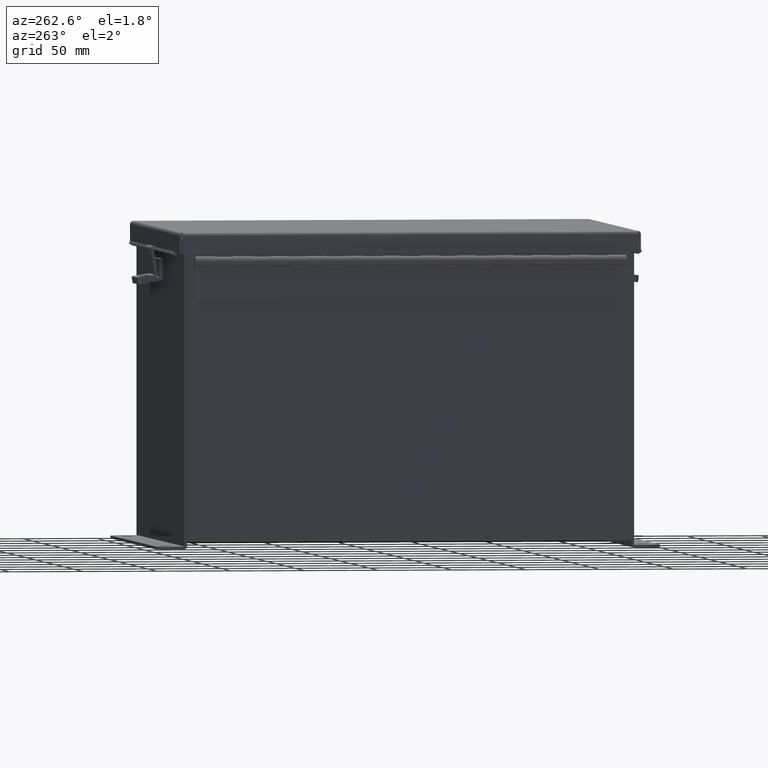
[diagram: clean part render]
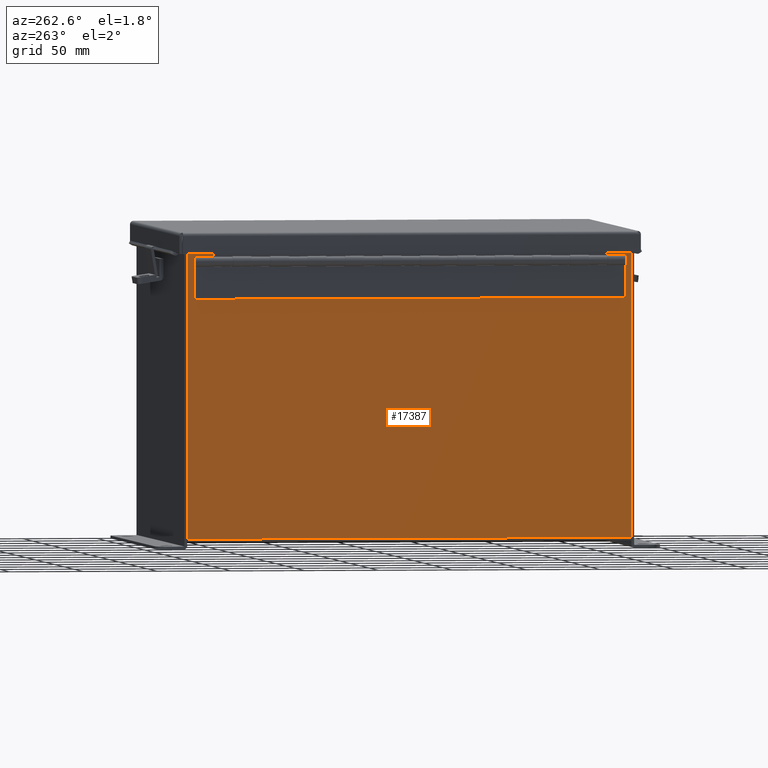
[diagram: same view with one face highlighted and labeled with its STEP entity id]
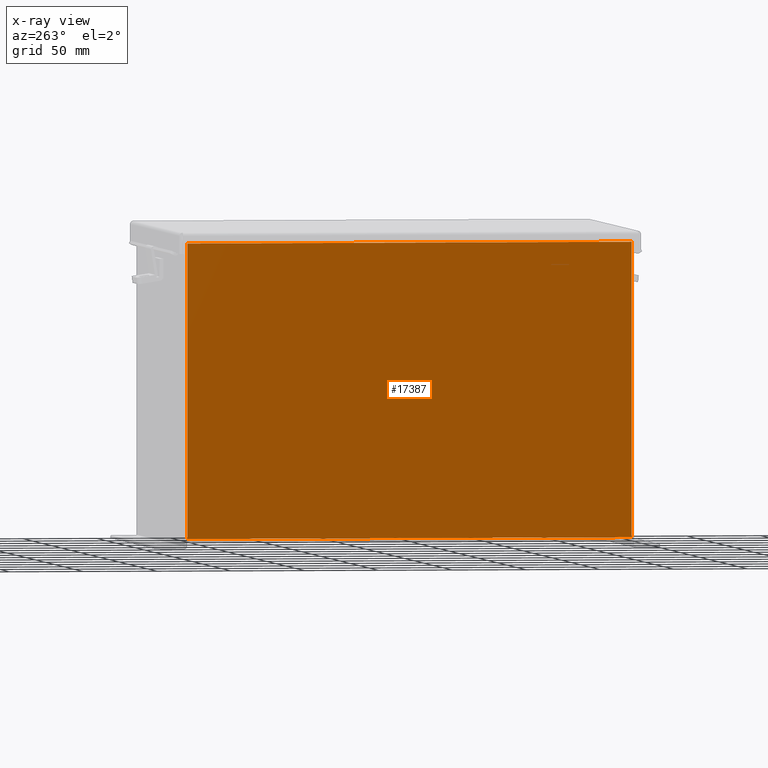
[diagram: x-ray of the same camera — body ghosted, the highlighted face saturated]
A machine part, auxiliary view. The second image highlights one B-rep face of the part: STEP entity #17387.
The next image is the same camera in x-ray: the body ghosted, the highlighted face saturated — about 0% of this face is hidden behind the body in this view.
In plain terms, the highlighted planar face has unit normal (1, 0, 0).
Its self-contained STEP definition (entity closure, byte-faithful):
#95 = CARTESIAN_POINT ( 'NONE',  ( -5.000000000000027500, 5.925300000000000000, 7.837599999999999200 ) ) ;
#104 = VERTEX_POINT ( 'NONE', #95 ) ;
#360 = VECTOR ( 'NONE', #8252, 39.37007874015748100 ) ;
#1897 = LINE ( 'NONE', #2052, #15518 ) ;
#2052 = CARTESIAN_POINT ( 'NONE',  ( -5.000000000000000000, 5.925300000000000000, -1.766310468403550300E-014 ) ) ;
#2378 = DIRECTION ( 'NONE',  ( 0.0000000000000000000, 1.000000000000000000, 0.0000000000000000000 ) ) ;
#2494 = ORIENTED_EDGE ( 'NONE', *, *, #6113, .F. ) ;
#3223 = CARTESIAN_POINT ( 'NONE',  ( -5.000000000000000000, 5.925300000000000000, 0.01299999999999984300 ) ) ;
#3432 = DIRECTION ( 'NONE',  ( 3.479795166820706300E-015, 0.0000000000000000000, -1.000000000000000000 ) ) ;
#3995 = LINE ( 'NONE', #10942, #360 ) ;
#5429 = CARTESIAN_POINT ( 'NONE',  ( -5.000000000000000000, 0.0000000000000000000, -1.766310468403550300E-014 ) ) ;
#6011 = ORIENTED_EDGE ( 'NONE', *, *, #13441, .T. ) ;
#6113 = EDGE_CURVE ( 'NONE', #15864, #12385, #9417, .T. ) ;
#6772 = CARTESIAN_POINT ( 'NONE',  ( -5.000000000000027500, -5.925299999999997300, 7.837599999999999200 ) ) ;
#6796 = DIRECTION ( 'NONE',  ( 3.479795166820705900E-015, 0.0000000000000000000, -1.000000000000000000 ) ) ;
#7775 = CARTESIAN_POINT ( 'NONE',  ( -5.000000000000027500, -5.925299999999998200, 7.837599999999999200 ) ) ;
#7811 = VECTOR ( 'NONE', #2378, 39.37007874015748100 ) ;
#8252 = DIRECTION ( 'NONE',  ( -3.479795166820706300E-015, 2.783836133456565100E-016, 1.000000000000000000 ) ) ;
#8564 = VECTOR ( 'NONE', #12604, 39.37007874015748100 ) ;
#9417 = LINE ( 'NONE', #3223, #8564 ) ;
#9802 = FACE_OUTER_BOUND ( 'NONE', #16831, .T. ) ;
#10237 = CARTESIAN_POINT ( 'NONE',  ( -5.000000000000000000, 5.925300000000000000, 0.01299999999999984300 ) ) ;
#10659 = VERTEX_POINT ( 'NONE', #6772 ) ;
#10942 = CARTESIAN_POINT ( 'NONE',  ( -5.000000000000000000, -5.925300000000000000, -1.600692183787654200E-014 ) ) ;
#11145 = AXIS2_PLACEMENT_3D ( 'NONE', #5429, #14961, #6796 ) ;
#11432 = LINE ( 'NONE', #7775, #7811 ) ;
#12385 = VERTEX_POINT ( 'NONE', #10237 ) ;
#12604 = DIRECTION ( 'NONE',  ( -0.0000000000000000000, 1.000000000000000000, -0.0000000000000000000 ) ) ;
#13080 = EDGE_CURVE ( 'NONE', #104, #12385, #1897, .T. ) ;
#13441 = EDGE_CURVE ( 'NONE', #15864, #10659, #3995, .T. ) ;
#13662 = CARTESIAN_POINT ( 'NONE',  ( -5.000000000000000000, -5.925299999999999100, 0.01299999999999984300 ) ) ;
#13898 = ORIENTED_EDGE ( 'NONE', *, *, #13080, .T. ) ;
#14923 = EDGE_CURVE ( 'NONE', #10659, #104, #11432, .T. ) ;
#14961 = DIRECTION ( 'NONE',  ( 1.000000000000000000, 0.0000000000000000000, 3.479795166820705900E-015 ) ) ;
#15518 = VECTOR ( 'NONE', #3432, 39.37007874015748100 ) ;
#15804 = ORIENTED_EDGE ( 'NONE', *, *, #14923, .T. ) ;
#15864 = VERTEX_POINT ( 'NONE', #13662 ) ;
#16831 = EDGE_LOOP ( 'NONE', ( #15804, #13898, #2494, #6011 ) ) ;
#17387 = ADVANCED_FACE ( 'NONE', ( #9802 ), #17641, .F. ) ;
#17641 = PLANE ( 'NONE',  #11145 ) ;